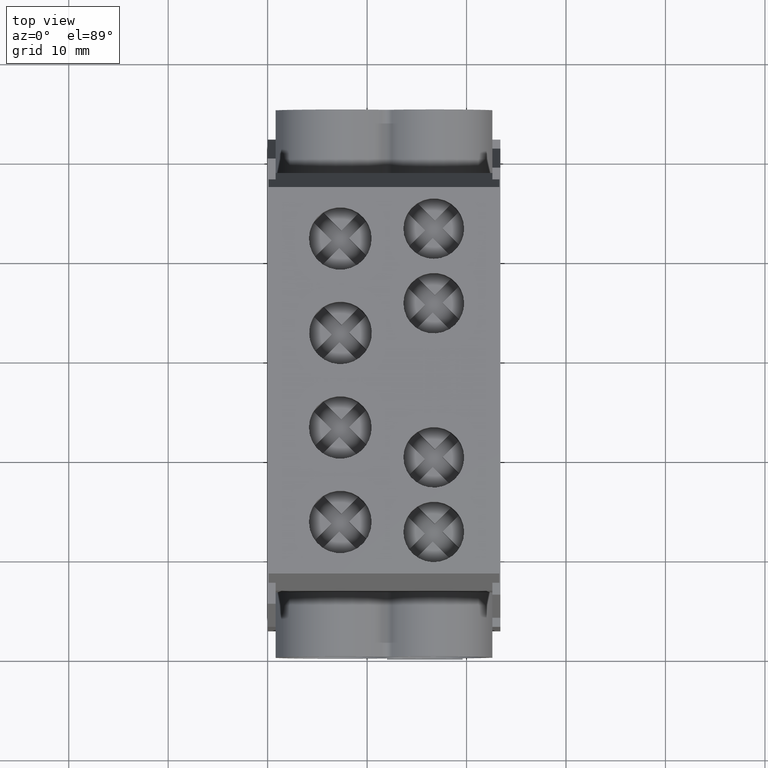
[diagram: clean part render]
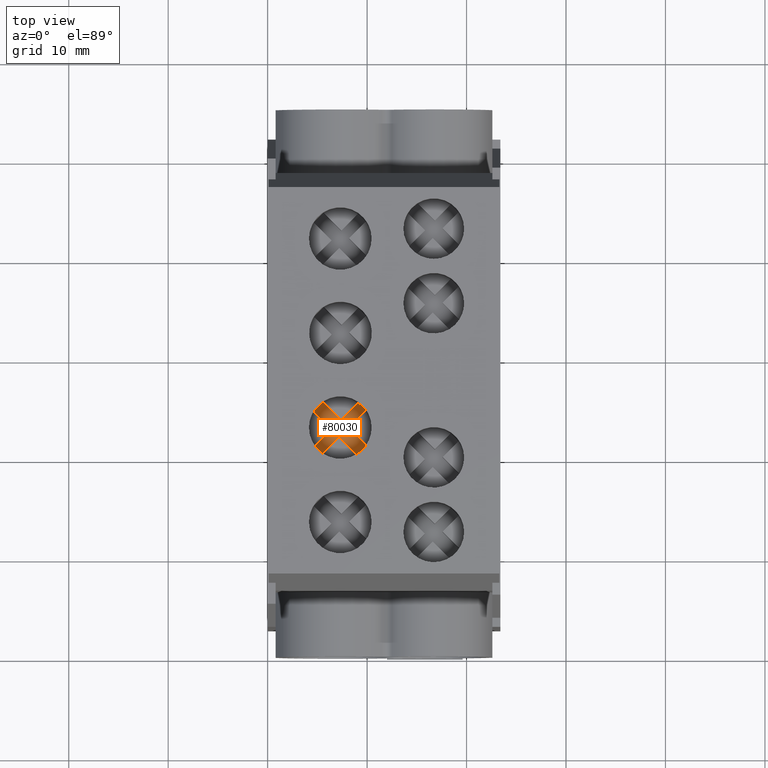
[diagram: same view with one face highlighted and labeled with its STEP entity id]
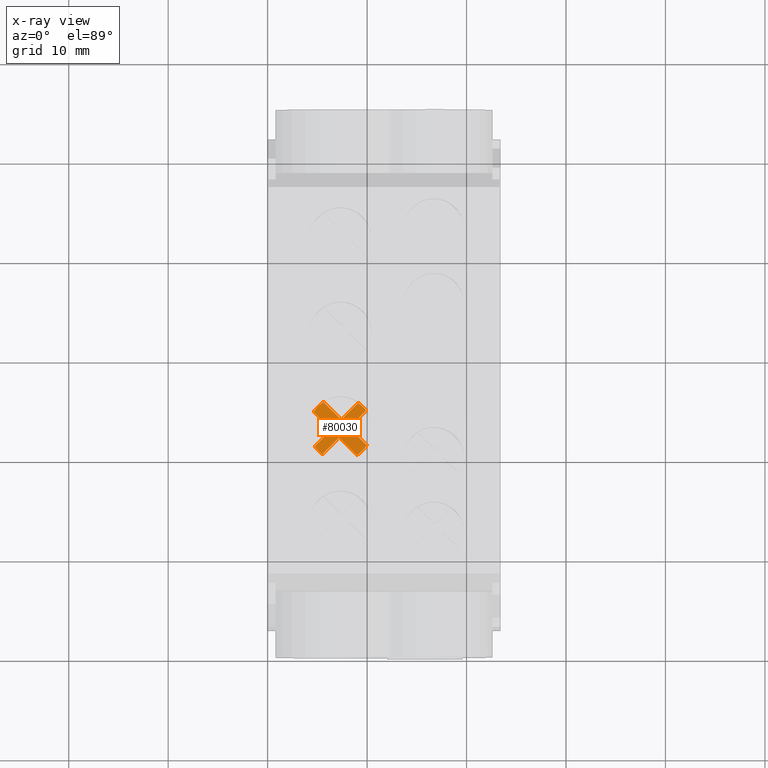
[diagram: x-ray of the same camera — body ghosted, the highlighted face saturated]
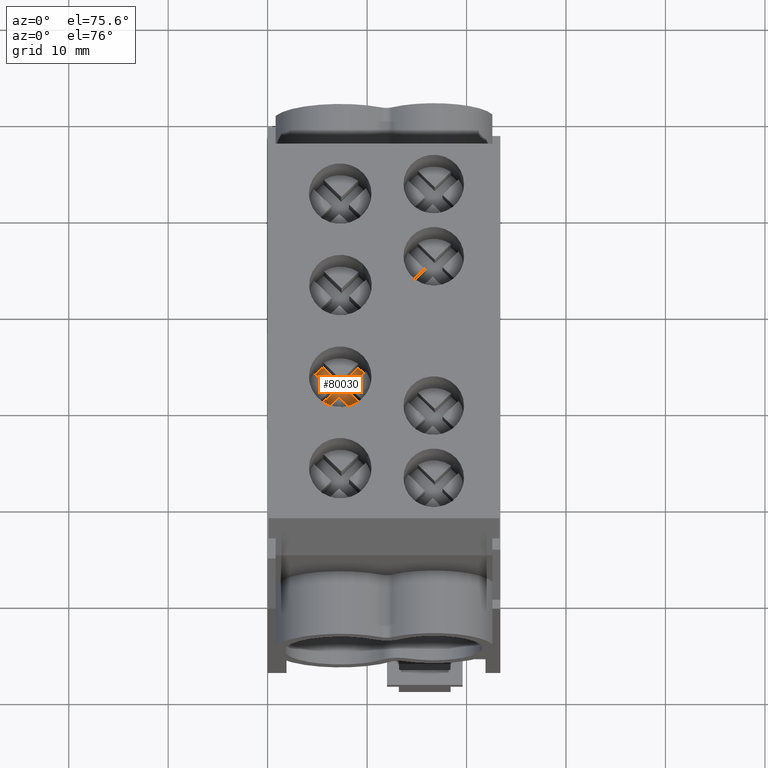
[diagram: same view with one face highlighted and labeled with its STEP entity id]
A machine part, top view. The second image highlights one B-rep face of the part: STEP entity #80030.
The next image is the same camera in x-ray: the body ghosted, the highlighted face saturated — about 0% of this face is hidden behind the body in this view.
A second angle (auxiliary view) of the same face is appended — the face is thin or edge-on in the first view.
In plain terms, the highlighted planar face has unit normal (-0, -0, 1).
Its self-contained STEP definition (entity closure, byte-faithful):
#51840=CARTESIAN_POINT('',(-6.98207994959875,-6.5542624902935,22.65));
#51850=VERTEX_POINT('',#51840);
#51880=CARTESIAN_POINT('',(-4.4,-4.74999999999999,22.65));
#51890=DIRECTION('',(-5.55111512312579E-17,-1.77619756370172E-16,1.));
#51900=DIRECTION('',(0.707106781186548,0.707106781186547,
1.64848445669146E-16));
#51910=AXIS2_PLACEMENT_3D('',#51880,#51890,#51900);
#51920=CIRCLE('',#51910,3.15);
#51930=CARTESIAN_POINT('',(-6.20426249029353,-7.33207994959873,22.65));
#51940=VERTEX_POINT('',#51930);
#51950=EDGE_CURVE('',#51850,#51940,#51920,.T.);
#52130=CARTESIAN_POINT('',(-2.72328185878218,-7.41666763487898,22.65));
#52140=VERTEX_POINT('',#52130);
#52170=CARTESIAN_POINT('',(-4.4,-4.74999999999999,22.65));
#52180=DIRECTION('',(-5.55111512312579E-17,-1.77619756370172E-16,1.));
#52190=DIRECTION('',(0.707106781186548,0.707106781186547,
1.64848445669146E-16));
#52200=AXIS2_PLACEMENT_3D('',#52170,#52180,#52190);
#52210=CIRCLE('',#52200,3.15);
#52220=CARTESIAN_POINT('',(-1.73333236512101,-6.42671814121781,22.65));
#52230=VERTEX_POINT('',#52220);
#52240=EDGE_CURVE('',#52140,#52230,#52210,.T.);
#78870=CARTESIAN_POINT('',(-3.51611652351681,-4.64393398282201,22.65));
#78880=VERTEX_POINT('',#78870);
#78930=CARTESIAN_POINT('',(-3.34630043000478,-4.47411788930999,22.65));
#78940=DIRECTION('',(0.70710678118655,0.707106781186545,
1.64848445669145E-16));
#78950=VECTOR('',#78940,1.);
#78960=LINE('',#78930,#78950);
#78970=CARTESIAN_POINT('',(-1.81792005040126,-2.94573750970648,22.65));
#78980=VERTEX_POINT('',#78970);
#78990=EDGE_CURVE('',#78880,#78980,#78960,.T.);
#79250=CARTESIAN_POINT('',(5.00000000000001,-13.4907072391202,22.65));
#79260=DIRECTION('',(-5.55111512312579E-17,-1.77619756370172E-16,1.));
#79270=DIRECTION('',(1.29047499042821E-16,1.,1.77619756370172E-16));
#79280=AXIS2_PLACEMENT_3D('',#79250,#79260,#79270);
#79290=PLANE('',#79280);
#79300=CARTESIAN_POINT('',(-1.75172801773024,-8.38822147593092,22.65));
#79310=DIRECTION('',(-0.707106781186547,0.707106781186548,
8.63438227349568E-17));
#79320=VECTOR('',#79310,1.);
#79330=LINE('',#79300,#79320);
#79340=CARTESIAN_POINT('',(-4.50606601717798,-5.63388347648318,22.65));
#79350=VERTEX_POINT('',#79340);
#79360=EDGE_CURVE('',#52140,#79350,#79330,.T.);
#79370=ORIENTED_EDGE('',*,*,#79360,.F.);
#79380=CARTESIAN_POINT('',(-4.67591163757437,-5.80372909687957,22.65));
#79390=DIRECTION('',(-0.707106781186548,-0.707106781186547,
-1.64848445669146E-16));
#79400=VECTOR('',#79390,1.);
#79410=LINE('',#79380,#79400);
#79420=EDGE_CURVE('',#79350,#51940,#79410,.T.);
#79430=ORIENTED_EDGE('',*,*,#79420,.F.);
#79440=ORIENTED_EDGE('',*,*,#51950,.T.);
#79450=CARTESIAN_POINT('',(-5.45369957003637,-5.02588211073116,22.65));
#79460=DIRECTION('',(-0.707106781186555,-0.70710678118654,
-1.64848445669145E-16));
#79470=VECTOR('',#79460,1.);
#79480=LINE('',#79450,#79470);
#79490=CARTESIAN_POINT('',(-5.28388347648318,-4.85606601717797,22.65));
#79500=VERTEX_POINT('',#79490);
#79510=EDGE_CURVE('',#79500,#51850,#79480,.T.);
#79520=ORIENTED_EDGE('',*,*,#79510,.T.);
#79530=CARTESIAN_POINT('',(-5.62791264430067,-4.51203684936049,22.65));
#79540=DIRECTION('',(-0.707106781186547,0.707106781186548,
8.63438227349568E-17));
#79550=VECTOR('',#79540,1.);
#79560=LINE('',#79530,#79550);
#79570=CARTESIAN_POINT('',(-7.06666763487898,-3.07328185878218,22.65));
#79580=VERTEX_POINT('',#79570);
#79590=EDGE_CURVE('',#79500,#79580,#79560,.T.);
#79600=ORIENTED_EDGE('',*,*,#79590,.F.);
#79610=CARTESIAN_POINT('',(-4.4,-4.74999999999999,22.65));
#79620=DIRECTION('',(-5.55111512312579E-17,-1.77619756370172E-16,1.));
#79630=DIRECTION('',(0.707106781186548,0.707106781186547,
1.64848445669146E-16));
#79640=AXIS2_PLACEMENT_3D('',#79610,#79620,#79630);
#79650=CIRCLE('',#79640,3.15);
#79660=CARTESIAN_POINT('',(-6.07671814121781,-2.08333236512101,22.65));
#79670=VERTEX_POINT('',#79660);
#79680=EDGE_CURVE('',#79670,#79580,#79650,.T.);
#79690=ORIENTED_EDGE('',*,*,#79680,.T.);
#79700=CARTESIAN_POINT('',(-4.63796315063949,-3.52208735569934,22.65));
#79710=DIRECTION('',(-0.707106781186547,0.707106781186548,
8.63438227349568E-17));
#79720=VECTOR('',#79710,1.);
#79730=LINE('',#79700,#79720);
#79740=CARTESIAN_POINT('',(-4.29393398282201,-3.86611652351681,22.65));
#79750=VERTEX_POINT('',#79740);
#79760=EDGE_CURVE('',#79750,#79670,#79730,.T.);
#79770=ORIENTED_EDGE('',*,*,#79760,.T.);
#79780=CARTESIAN_POINT('',(-4.12408836242562,-3.69627090312042,22.65));
#79790=DIRECTION('',(0.707106781186548,0.707106781186547,
1.64848445669146E-16));
#79800=VECTOR('',#79790,1.);
#79810=LINE('',#79780,#79800);
#79820=CARTESIAN_POINT('',(-2.59573750970647,-2.16792005040126,22.65));
#79830=VERTEX_POINT('',#79820);
#79840=EDGE_CURVE('',#79750,#79830,#79810,.T.);
#79850=ORIENTED_EDGE('',*,*,#79840,.F.);
#79860=CARTESIAN_POINT('',(-4.4,-4.74999999999999,22.65));
#79870=DIRECTION('',(-5.55111512312579E-17,-1.77619756370172E-16,1.));
#79880=DIRECTION('',(0.707106781186548,0.707106781186547,
1.64848445669146E-16));
#79890=AXIS2_PLACEMENT_3D('',#79860,#79870,#79880);
#79900=CIRCLE('',#79890,3.15);
#79910=EDGE_CURVE('',#78980,#79830,#79900,.T.);
#79920=ORIENTED_EDGE('',*,*,#79910,.T.);
#79930=ORIENTED_EDGE('',*,*,#78990,.T.);
#79940=CARTESIAN_POINT('',(-0.761778524069071,-7.39827198226976,22.65));
#79950=DIRECTION('',(-0.707106781186547,0.707106781186548,
8.63438227349568E-17));
#79960=VECTOR('',#79950,1.);
#79970=LINE('',#79940,#79960);
#79980=EDGE_CURVE('',#52230,#78880,#79970,.T.);
#79990=ORIENTED_EDGE('',*,*,#79980,.T.);
#80000=ORIENTED_EDGE('',*,*,#52240,.T.);
#80010=EDGE_LOOP('',(#80000,#79990,#79930,#79920,#79850,#79770,#79690,
#79600,#79520,#79440,#79430,#79370));
#80020=FACE_OUTER_BOUND('',#80010,.T.);
#80030=ADVANCED_FACE('',(#80020),#79290,.T.);